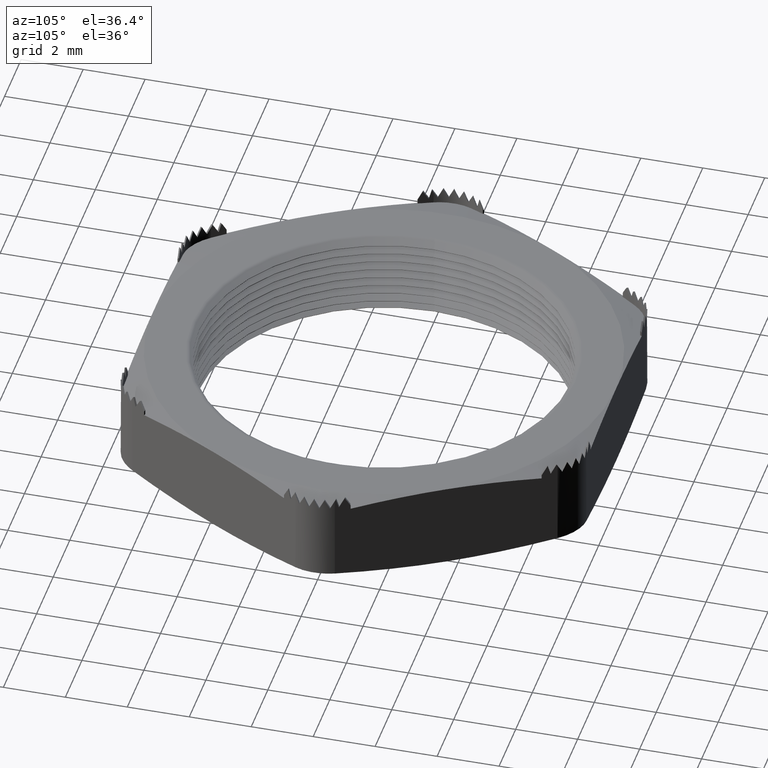
[diagram: clean part render]
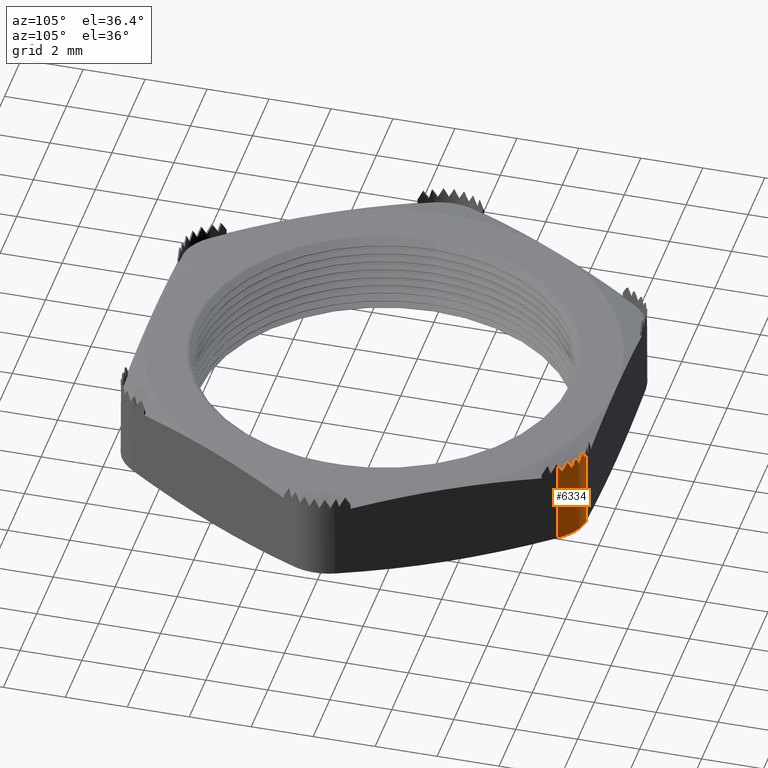
[diagram: same view with one face highlighted and labeled with its STEP entity id]
A machine part, auxiliary view. The second image highlights one B-rep face of the part: STEP entity #6334.
In plain terms, the highlighted cylindrical surface (partial cylindrical patch) has radius 1.27 mm, axis along (0, 0, -1).
Its self-contained STEP definition (entity closure, byte-faithful):
#1035 = VERTEX_POINT ( 'NONE', #2786 ) ;
#1037 = EDGE_CURVE ( 'NONE', #1035, #1038, #2842, .T. ) ;
#1038 = VERTEX_POINT ( 'NONE', #2838 ) ;
#1044 = VERTEX_POINT ( 'NONE', #2829 ) ;
#1046 = EDGE_CURVE ( 'NONE', #1044, #1047, #2831, .T. ) ;
#1047 = VERTEX_POINT ( 'NONE', #2821 ) ;
#2786 = CARTESIAN_POINT ( 'NONE',  ( 0.1414508159514585900, 0.2950000000000001000, 0.1191615384615294500 ) ) ;
#2821 = CARTESIAN_POINT ( 'NONE',  ( 0.1847520861406805000, 0.2700000000000000700, 0.1191615384615475500 ) ) ;
#2822 = DIRECTION ( 'NONE',  ( 0.0000000000000000000, 0.0000000000000000000, 1.000000000000000000 ) ) ;
#2823 = VECTOR ( 'NONE', #2822, 39.37007874015748100 ) ;
#2824 = CARTESIAN_POINT ( 'NONE',  ( 0.1847520861406805000, 0.2700000000000000700, 0.1100000000000000000 ) ) ;
#2829 = CARTESIAN_POINT ( 'NONE',  ( 0.1847520861406805000, 0.2700000000000000700, 0.008617109962662768500 ) ) ;
#2831 = LINE ( 'NONE', #2824, #2823 ) ;
#2838 = CARTESIAN_POINT ( 'NONE',  ( 0.1414508159514585900, 0.2950000000000001000, 0.008617109962662771900 ) ) ;
#2839 = DIRECTION ( 'NONE',  ( 0.0000000000000000000, 0.0000000000000000000, -1.000000000000000000 ) ) ;
#2840 = VECTOR ( 'NONE', #2839, 39.37007874015748100 ) ;
#2841 = CARTESIAN_POINT ( 'NONE',  ( 0.1414508159514585900, 0.2950000000000001000, 0.1100000000000000000 ) ) ;
#2842 = LINE ( 'NONE', #2841, #2840 ) ;
#4892 = CARTESIAN_POINT ( 'NONE',  ( 0.1475836919908205500, 0.2946224528967062400, 0.1085000000000000100 ) ) ;
#4930 = CARTESIAN_POINT ( 'NONE',  ( 0.1543327011114027100, 0.2933120795943004500, 0.1211000000000000100 ) ) ;
#4931 = CARTESIAN_POINT ( 'NONE',  ( 0.1813586827384156300, 0.2751224528967096700, 0.1085000000000000100 ) ) ;
#4932 = B_SPLINE_CURVE_WITH_KNOTS ( 'NONE', 3,
 ( #4962, #4961, #4960, #4959, #4958, #4957, #4956, #4955, #4954, #4953 ),
 .UNSPECIFIED., .F., .F.,
 ( 4, 2, 2, 2, 4 ),
 ( 2.292133575853452700E-007, 0.0003317374096763886500, 0.0006632456059951918800, 0.0009947538023139951000, 0.001326261998632799500 ),
 .UNSPECIFIED. ) ;
#4933 = CARTESIAN_POINT ( 'NONE',  ( 0.1414508159514585900, 0.2950000000000001000, 0.1191615384615294500 ) ) ;
#4934 = CARTESIAN_POINT ( 'NONE',  ( 0.1435015612928983700, 0.2950000000000000400, 0.1157188354944554000 ) ) ;
#4935 = CARTESIAN_POINT ( 'NONE',  ( 0.1455484317086458400, 0.2948739922360532100, 0.1121605069837867400 ) ) ;
#4936 = CARTESIAN_POINT ( 'NONE',  ( 0.1475836919908205500, 0.2946224528967062400, 0.1085000000000000100 ) ) ;
#4937 =( BOUNDED_CURVE ( )  B_SPLINE_CURVE ( 3, ( #4936, #4935, #4934, #4933 ),
 .UNSPECIFIED., .F., .T. ) 
 B_SPLINE_CURVE_WITH_KNOTS ( ( 4, 4 ),
 ( 1.971427919496357800, 2.094395102393183300 ),
 .UNSPECIFIED. ) 
 CURVE ( )  GEOMETRIC_REPRESENTATION_ITEM ( )  RATIONAL_B_SPLINE_CURVE ( ( 1.000000000000000000, 0.9987403195595782000, 0.9987403195595782000, 1.000000000000000000 ) ) 
 REPRESENTATION_ITEM ( '' )  );
#4938 = CARTESIAN_POINT ( 'NONE',  ( 0.1475836919908205500, 0.2946224528967062400, 0.1085000000000000100 ) ) ;
#4939 = CARTESIAN_POINT ( 'NONE',  ( 0.1498616615881630800, 0.2943409169317062800, 0.1125970305827499900 ) ) ;
#4940 = CARTESIAN_POINT ( 'NONE',  ( 0.1521148855445403900, 0.2939034357453535500, 0.1168036661559295300 ) ) ;
#4941 = CARTESIAN_POINT ( 'NONE',  ( 0.1543327011114027100, 0.2933120795943004500, 0.1211000000000000100 ) ) ;
#4942 =( BOUNDED_CURVE ( )  B_SPLINE_CURVE ( 3, ( #4941, #4940, #4939, #4938 ),
 .UNSPECIFIED., .F., .F. ) 
 B_SPLINE_CURVE_WITH_KNOTS ( ( 4, 4 ),
 ( 4.975411183293244800, 5.113020573086151500 ),
 .UNSPECIFIED. ) 
 CURVE ( )  GEOMETRIC_REPRESENTATION_ITEM ( )  RATIONAL_B_SPLINE_CURVE ( ( 1.000000000000000000, 0.9984225937654663800, 0.9984225937654663800, 1.000000000000000000 ) ) 
 REPRESENTATION_ITEM ( '' )  );
#4943 = CARTESIAN_POINT ( 'NONE',  ( 0.1752867952869270100, 0.2818784720571614300, 0.1169586351749384400 ) ) ;
#4944 = CARTESIAN_POINT ( 'NONE',  ( 0.1768493616097994400, 0.2803120795943027100, 0.1211000000000000100 ) ) ;
#4945 =( BOUNDED_CURVE ( )  B_SPLINE_CURVE ( 3, ( #4944, #4943, #4975, #4974 ),
 .UNSPECIFIED., .F., .T. ) 
 B_SPLINE_CURVE_WITH_KNOTS ( ( 4, 4 ),
 ( 4.449366777476306800, 4.582020000681627200 ),
 .UNSPECIFIED. ) 
 CURVE ( )  GEOMETRIC_REPRESENTATION_ITEM ( )  RATIONAL_B_SPLINE_CURVE ( ( 1.000000000000000000, 0.9985341310392602500, 0.9985341310392602500, 1.000000000000000000 ) ) 
 REPRESENTATION_ITEM ( '' )  );
#4946 = CARTESIAN_POINT ( 'NONE',  ( 0.1718678309222988500, 0.2846838153440881000, 0.1085000000000000100 ) ) ;
#4947 = CARTESIAN_POINT ( 'NONE',  ( 0.1813586827384156300, 0.2751224528967096700, 0.1085000000000000100 ) ) ;
#4948 = CARTESIAN_POINT ( 'NONE',  ( 0.1825941523374310600, 0.2734856354587039100, 0.1121605069837931400 ) ) ;
#4949 = CARTESIAN_POINT ( 'NONE',  ( 0.1837267134699588900, 0.2717759975623825800, 0.1157188354944678300 ) ) ;
#4950 = CARTESIAN_POINT ( 'NONE',  ( 0.1847520861406805000, 0.2700000000000000700, 0.1191615384615475500 ) ) ;
#4951 =( BOUNDED_CURVE ( )  B_SPLINE_CURVE ( 3, ( #4950, #4949, #4948, #4947 ),
 .UNSPECIFIED., .F., .T. ) 
 B_SPLINE_CURVE_WITH_KNOTS ( ( 4, 4 ),
 ( 4.188790204786379000, 4.311757387683408100 ),
 .UNSPECIFIED. ) 
 CURVE ( )  GEOMETRIC_REPRESENTATION_ITEM ( )  RATIONAL_B_SPLINE_CURVE ( ( 1.000000000000000000, 0.9987403195595738700, 0.9987403195595738700, 1.000000000000000000 ) ) 
 REPRESENTATION_ITEM ( '' )  );
#4952 = CARTESIAN_POINT ( 'NONE',  ( 0.1768493616097994400, 0.2803120795943027100, 0.1211000000000000100 ) ) ;
#4953 = CARTESIAN_POINT ( 'NONE',  ( 0.1414508159514585900, 0.2950000000000001000, 0.008617109962662771900 ) ) ;
#4954 = CARTESIAN_POINT ( 'NONE',  ( 0.1458340668788522800, 0.2950000000000001500, 0.009124912325582245800 ) ) ;
#4955 = CARTESIAN_POINT ( 'NONE',  ( 0.1501830584532691200, 0.2944231033544536000, 0.009508828916028066300 ) ) ;
#4956 = CARTESIAN_POINT ( 'NONE',  ( 0.1585810033643031700, 0.2921746953725856100, 0.01002382107067248600 ) ) ;
#4957 = CARTESIAN_POINT ( 'NONE',  ( 0.1627011705126104000, 0.2904682125076867300, 0.01015612252530062400 ) ) ;
#4958 = CARTESIAN_POINT ( 'NONE',  ( 0.1702364529692714000, 0.2861135381486140700, 0.01015529882819520300 ) ) ;
#4959 = CARTESIAN_POINT ( 'NONE',  ( 0.1737542276951221900, 0.2834126712328823800, 0.01002347853088670000 ) ) ;
#4960 = CARTESIAN_POINT ( 'NONE',  ( 0.1799202955494105800, 0.2772357388776639000, 0.009505146455892029800 ) ) ;
#4961 = CARTESIAN_POINT ( 'NONE',  ( 0.1825605930082523900, 0.2737957774498038800, 0.009124881664261676500 ) ) ;
#4962 = CARTESIAN_POINT ( 'NONE',  ( 0.1847520861406805000, 0.2700000000000000700, 0.008617109962662768500 ) ) ;
#4963 = CARTESIAN_POINT ( 'NONE',  ( 0.1768493616097994400, 0.2803120795943027100, 0.1211000000000000100 ) ) ;
#4964 = CARTESIAN_POINT ( 'NONE',  ( 0.1784703988427269700, 0.2786870730480183200, 0.1168036661559296300 ) ) ;
#4965 = CARTESIAN_POINT ( 'NONE',  ( 0.1799758806419751700, 0.2769544644545566800, 0.1125970305827500600 ) ) ;
#4966 = CARTESIAN_POINT ( 'NONE',  ( 0.1813586827384156300, 0.2751224528967096700, 0.1085000000000000100 ) ) ;
#4967 =( BOUNDED_CURVE ( )  B_SPLINE_CURVE ( 3, ( #4966, #4965, #4964, #4963 ),
 .UNSPECIFIED., .F., .T. ) 
 B_SPLINE_CURVE_WITH_KNOTS ( ( 4, 4 ),
 ( 1.170164734093616100, 1.307774123886514800 ),
 .UNSPECIFIED. ) 
 CURVE ( )  GEOMETRIC_REPRESENTATION_ITEM ( )  RATIONAL_B_SPLINE_CURVE ( ( 1.000000000000000000, 0.9984225937654667100, 0.9984225937654667100, 1.000000000000000000 ) ) 
 REPRESENTATION_ITEM ( '' )  );
#4968 = CARTESIAN_POINT ( 'NONE',  ( 0.1664508159514544200, 0.2883012701892244100, 0.1211000000000000100 ) ) ;
#4969 = CARTESIAN_POINT ( 'NONE',  ( 0.1664508159514544200, 0.2883012701892244100, 0.1211000000000000100 ) ) ;
#4970 = CARTESIAN_POINT ( 'NONE',  ( 0.1683338638903487400, 0.2872140919548070700, 0.1168850936142581400 ) ) ;
#4971 = CARTESIAN_POINT ( 'NONE',  ( 0.1701420957102693600, 0.2860065640093781800, 0.1126791386642300400 ) ) ;
#4972 = CARTESIAN_POINT ( 'NONE',  ( 0.1718678309222988500, 0.2846838153440881000, 0.1085000000000000100 ) ) ;
#4973 =( BOUNDED_CURVE ( )  B_SPLINE_CURVE ( 3, ( #4972, #4971, #4970, #4969 ),
 .UNSPECIFIED., .F., .T. ) 
 B_SPLINE_CURVE_WITH_KNOTS ( ( 4, 4 ),
 ( 1.440427347091835200, 1.570796326794980300 ),
 .UNSPECIFIED. ) 
 CURVE ( )  GEOMETRIC_REPRESENTATION_ITEM ( )  RATIONAL_B_SPLINE_CURVE ( ( 1.000000000000000000, 0.9985841621941153900, 0.9985841621941153900, 1.000000000000000000 ) ) 
 REPRESENTATION_ITEM ( '' )  );
#4974 = CARTESIAN_POINT ( 'NONE',  ( 0.1718678309222988500, 0.2846838153440881000, 0.1085000000000000100 ) ) ;
#4975 = CARTESIAN_POINT ( 'NONE',  ( 0.1736238473940607000, 0.2833378565735543100, 0.1127524694872131300 ) ) ;
#4978 = CARTESIAN_POINT ( 'NONE',  ( 0.1543327011114027100, 0.2933120795943004500, 0.1211000000000000100 ) ) ;
#4979 = CARTESIAN_POINT ( 'NONE',  ( 0.1564705199379712600, 0.2927420536950247100, 0.1169586351749385500 ) ) ;
#4980 = CARTESIAN_POINT ( 'NONE',  ( 0.1585658579494905500, 0.2920315908328294200, 0.1127524694872131800 ) ) ;
#4981 = CARTESIAN_POINT ( 'NONE',  ( 0.1606095006731005600, 0.2911838153440871000, 0.1085000000000000100 ) ) ;
#4982 =( BOUNDED_CURVE ( )  B_SPLINE_CURVE ( 3, ( #4981, #4980, #4979, #4978 ),
 .UNSPECIFIED., .F., .T. ) 
 B_SPLINE_CURVE_WITH_KNOTS ( ( 4, 4 ),
 ( 1.701165306498126300, 1.833818529703452800 ),
 .UNSPECIFIED. ) 
 CURVE ( )  GEOMETRIC_REPRESENTATION_ITEM ( )  RATIONAL_B_SPLINE_CURVE ( ( 1.000000000000000000, 0.9985341310392602500, 0.9985341310392602500, 1.000000000000000000 ) ) 
 REPRESENTATION_ITEM ( '' )  );
#4983 = CARTESIAN_POINT ( 'NONE',  ( 0.1606095006731005600, 0.2911838153440871000, 0.1085000000000000100 ) ) ;
#4984 = CARTESIAN_POINT ( 'NONE',  ( 0.1606095006731005600, 0.2911838153440871000, 0.1085000000000000100 ) ) ;
#4985 = CARTESIAN_POINT ( 'NONE',  ( 0.1626179022260786100, 0.2903506591429095300, 0.1126791386642300600 ) ) ;
#4986 = CARTESIAN_POINT ( 'NONE',  ( 0.1645677680125601800, 0.2893884484236417500, 0.1168850936142581100 ) ) ;
#4987 = CARTESIAN_POINT ( 'NONE',  ( 0.1664508159514544200, 0.2883012701892244100, 0.1211000000000000100 ) ) ;
#4988 =( BOUNDED_CURVE ( )  B_SPLINE_CURVE ( 3, ( #4987, #4986, #4985, #4984 ),
 .UNSPECIFIED., .F., .T. ) 
 B_SPLINE_CURVE_WITH_KNOTS ( ( 4, 4 ),
 ( 4.712388980384772300, 4.842757960087917400 ),
 .UNSPECIFIED. ) 
 CURVE ( )  GEOMETRIC_REPRESENTATION_ITEM ( )  RATIONAL_B_SPLINE_CURVE ( ( 1.000000000000000000, 0.9985841621941153900, 0.9985841621941153900, 1.000000000000000000 ) ) 
 REPRESENTATION_ITEM ( '' )  );
#4989 = AXIS2_PLACEMENT_3D ( 'NONE', #5035, #5034, #5033 ) ;
#4990 = CYLINDRICAL_SURFACE ( 'NONE', #4989, 0.05000000000000001000 ) ;
#4991 = FACE_OUTER_BOUND ( 'NONE', #6277, .T. ) ;
#5033 = DIRECTION ( 'NONE',  ( -1.000000000000000000, 0.0000000000000000000, 0.0000000000000000000 ) ) ;
#5034 = DIRECTION ( 'NONE',  ( 0.0000000000000000000, 0.0000000000000000000, -1.000000000000000000 ) ) ;
#5035 = CARTESIAN_POINT ( 'NONE',  ( 0.1414508159514585900, 0.2450000000000000800, 0.1100000000000000000 ) ) ;
#6277 = EDGE_LOOP ( 'NONE', ( #6306, #6299, #6301, #6298, #6283, #6282, #6318, #6316, #6312, #6307, #6311 ) ) ;
#6282 = ORIENTED_EDGE ( 'NONE', *, *, #6297, .F. ) ;
#6283 = ORIENTED_EDGE ( 'NONE', *, *, #6300, .F. ) ;
#6284 = VERTEX_POINT ( 'NONE', #4892 ) ;
#6295 = VERTEX_POINT ( 'NONE', #4930 ) ;
#6297 = EDGE_CURVE ( 'NONE', #6295, #6284, #4942, .T. ) ;
#6298 = ORIENTED_EDGE ( 'NONE', *, *, #1037, .F. ) ;
#6299 = ORIENTED_EDGE ( 'NONE', *, *, #1046, .F. ) ;
#6300 = EDGE_CURVE ( 'NONE', #6284, #1035, #4937, .T. ) ;
#6301 = ORIENTED_EDGE ( 'NONE', *, *, #6302, .T. ) ;
#6302 = EDGE_CURVE ( 'NONE', #1044, #1038, #4932, .T. ) ;
#6303 = VERTEX_POINT ( 'NONE', #4931 ) ;
#6304 = EDGE_CURVE ( 'NONE', #1047, #6303, #4951, .T. ) ;
#6306 = ORIENTED_EDGE ( 'NONE', *, *, #6304, .F. ) ;
#6307 = ORIENTED_EDGE ( 'NONE', *, *, #6309, .F. ) ;
#6308 = VERTEX_POINT ( 'NONE', #4952 ) ;
#6309 = EDGE_CURVE ( 'NONE', #6308, #6310, #4945, .T. ) ;
#6310 = VERTEX_POINT ( 'NONE', #4946 ) ;
#6311 = ORIENTED_EDGE ( 'NONE', *, *, #6314, .F. ) ;
#6312 = ORIENTED_EDGE ( 'NONE', *, *, #6313, .F. ) ;
#6313 = EDGE_CURVE ( 'NONE', #6310, #6315, #4973, .T. ) ;
#6314 = EDGE_CURVE ( 'NONE', #6303, #6308, #4967, .T. ) ;
#6315 = VERTEX_POINT ( 'NONE', #4968 ) ;
#6316 = ORIENTED_EDGE ( 'NONE', *, *, #6317, .F. ) ;
#6317 = EDGE_CURVE ( 'NONE', #6315, #6320, #4988, .T. ) ;
#6318 = ORIENTED_EDGE ( 'NONE', *, *, #6319, .F. ) ;
#6319 = EDGE_CURVE ( 'NONE', #6320, #6295, #4982, .T. ) ;
#6320 = VERTEX_POINT ( 'NONE', #4983 ) ;
#6334 = ADVANCED_FACE ( 'NONE', ( #4991 ), #4990, .T. ) ;